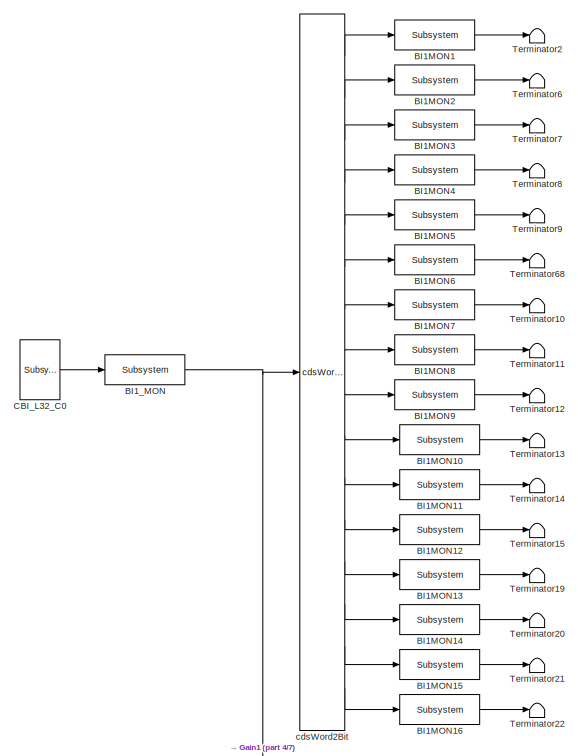
[diagram: root canvas - part 1/7, top left region]
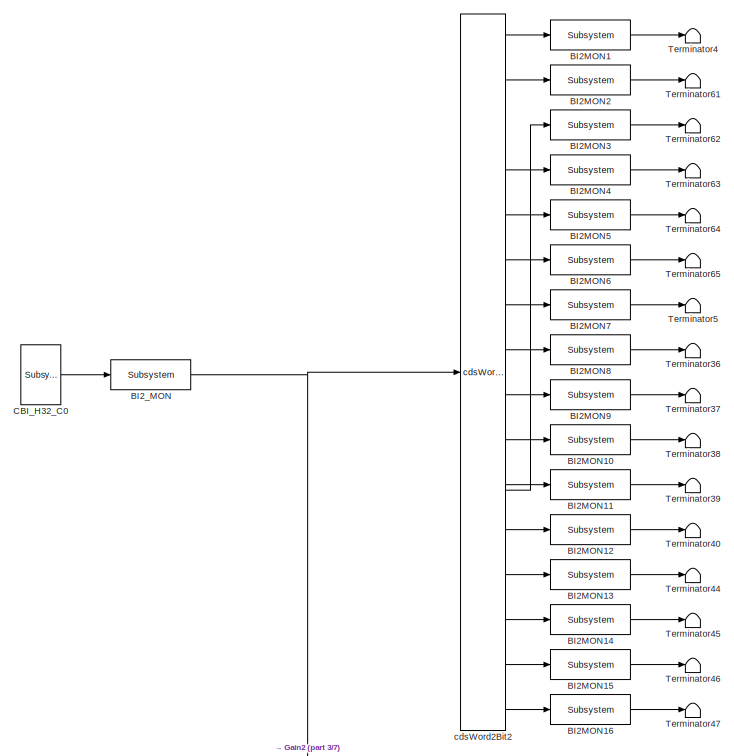
[diagram: root canvas - part 2/7, top right region]
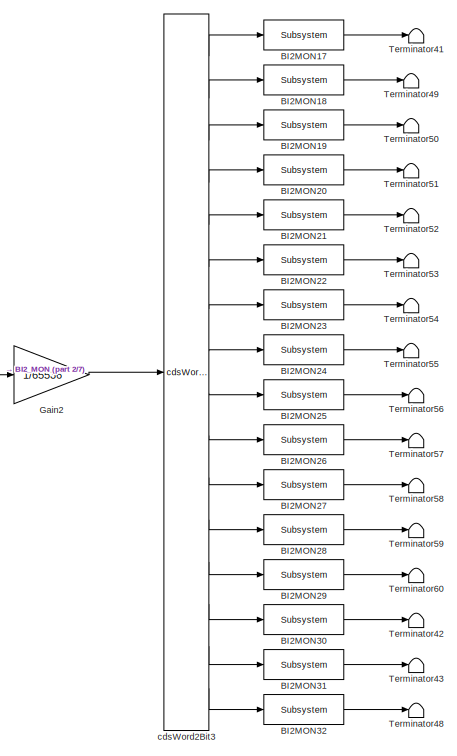
[diagram: root canvas - part 3/7, top right region]
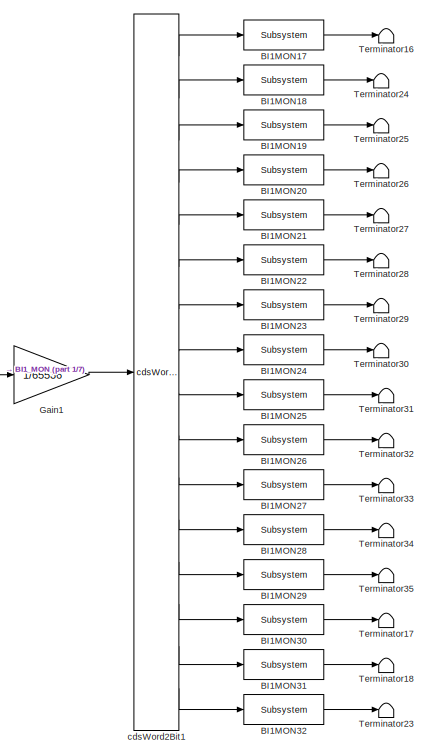
[diagram: root canvas - part 4/7, central region]
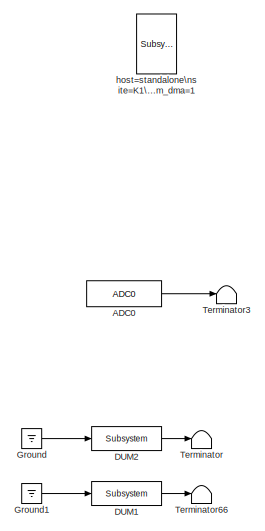
[diagram: root canvas - part 5/7, middle left region]
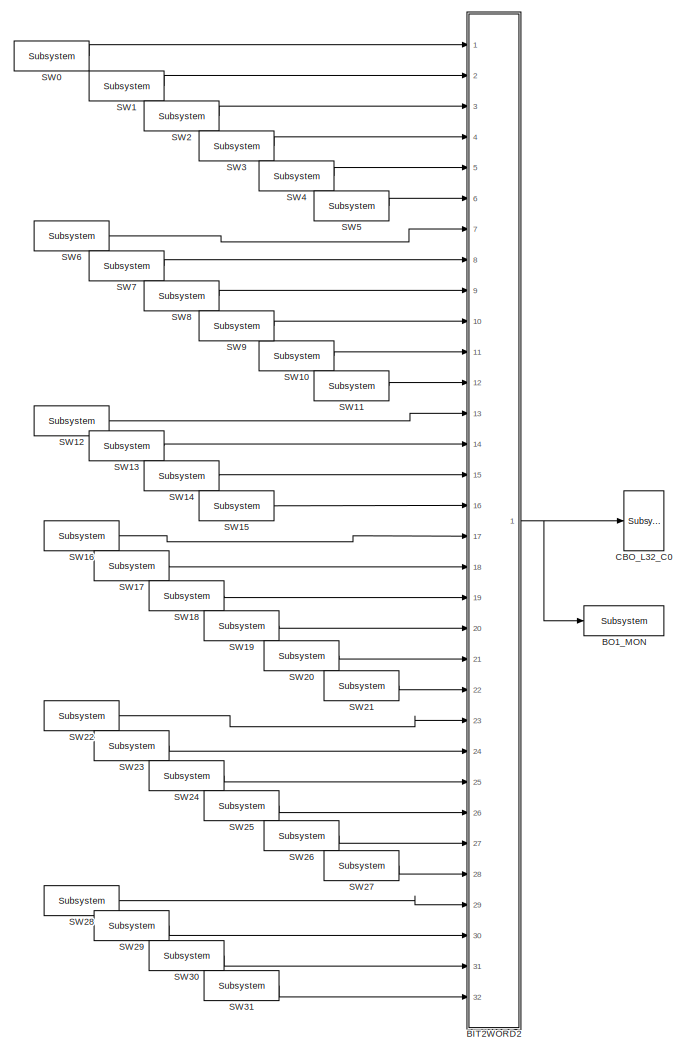
[diagram: root canvas - part 6/7, bottom center region]
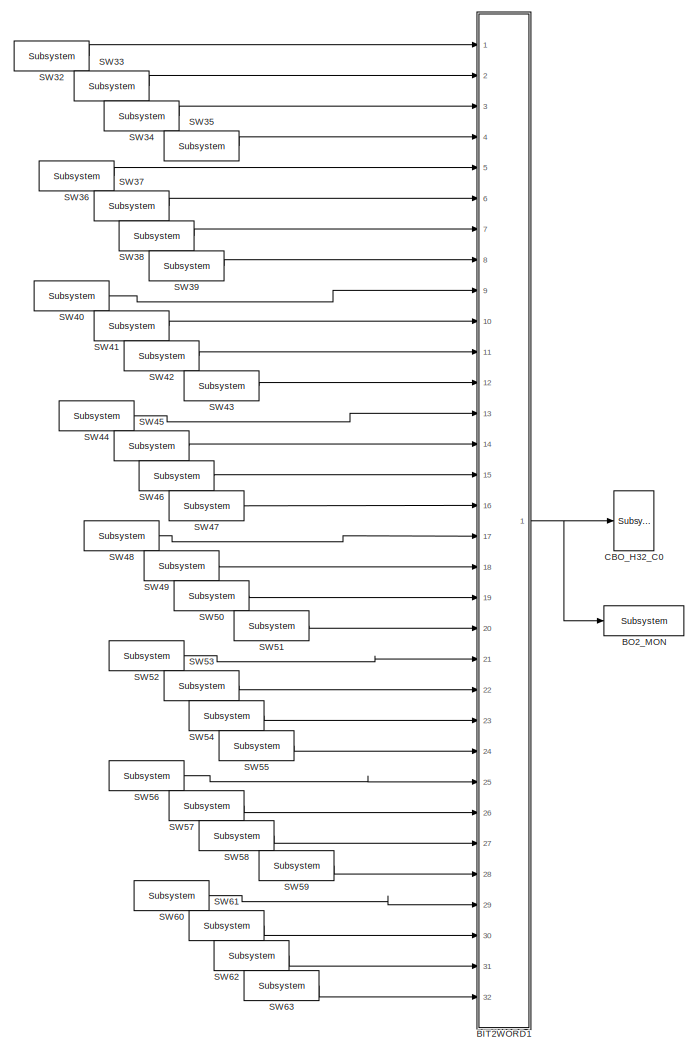
[diagram: root canvas - part 7/7, bottom center region]
MODEL k1bio
KIND model
BLOCK [Reference] ADC0  REF=cdsAdcx0/ADC0
  AttributesFormatString = %<Description>\\n%<Tag>
  Description = type-GSC_16AI64SSA\ncard_num=0
  Ports = [0, 1]
  SID = 11
  SourceBlock = cdsAdcx0/ADC0
  SourceType = SubSystem
  Tag = cdsAdc
BLOCK [Reference] BI1MON1  REF=cdsEpicsOut/Subsystem
  AttributesFormatString = %<Tag>
  Description = Purpose:                                          \nOutput a FE signal to an EPICS channel.           \n                                                  \nOperation:                                        \nTakes input value and passes it to EPICS record.  \n                                                  \nUsage:                                            \nName the part with the desired EPICS...<+14ch>  <repeated x68 — deduplicated; at blocks: BI1MON1, BI1MON10, BI1MON11, BI1MON12, BI1MON13, BI1MON14, BI1MON15, BI1MON16, BI1MON17, BI1MON18, BI1MON19, BI1MON2, BI1MON20, BI1MON21, BI1MON22, BI1MON23, +52 more>
  Ports = [1, 1]
  SID = 603
  SourceBlock = cdsEpicsOut/Subsystem
  SourceType = SubSystem
  Tag = cdsEpicsOutput
BLOCK [Reference] BI1MON10  REF=cdsEpicsOut/Subsystem
  AttributesFormatString = %<Tag>
  Ports = [1, 1]
  SID = 604
  SourceBlock = cdsEpicsOut/Subsystem
  SourceType = SubSystem
  Tag = cdsEpicsOutput
BLOCK [Reference] BI1MON11  REF=cdsEpicsOut/Subsystem
  AttributesFormatString = %<Tag>
  Ports = [1, 1]
  SID = 605
  SourceBlock = cdsEpicsOut/Subsystem
  SourceType = SubSystem
  Tag = cdsEpicsOutput
BLOCK [Reference] BI1MON12  REF=cdsEpicsOut/Subsystem
  AttributesFormatString = %<Tag>
  Ports = [1, 1]
  SID = 606
  SourceBlock = cdsEpicsOut/Subsystem
  SourceType = SubSystem
  Tag = cdsEpicsOutput
BLOCK [Reference] BI1MON13  REF=cdsEpicsOut/Subsystem
  AttributesFormatString = %<Tag>
  Ports = [1, 1]
  SID = 607
  SourceBlock = cdsEpicsOut/Subsystem
  SourceType = SubSystem
  Tag = cdsEpicsOutput
BLOCK [Reference] BI1MON14  REF=cdsEpicsOut/Subsystem
  AttributesFormatString = %<Tag>
  Ports = [1, 1]
  SID = 608
  SourceBlock = cdsEpicsOut/Subsystem
  SourceType = SubSystem
  Tag = cdsEpicsOutput
BLOCK [Reference] BI1MON15  REF=cdsEpicsOut/Subsystem
  AttributesFormatString = %<Tag>
  Ports = [1, 1]
  SID = 609
  SourceBlock = cdsEpicsOut/Subsystem
  SourceType = SubSystem
  Tag = cdsEpicsOutput
BLOCK [Reference] BI1MON16  REF=cdsEpicsOut/Subsystem
  AttributesFormatString = %<Tag>
  Ports = [1, 1]
  SID = 610
  SourceBlock = cdsEpicsOut/Subsystem
  SourceType = SubSystem
  Tag = cdsEpicsOutput
BLOCK [Reference] BI1MON17  REF=cdsEpicsOut/Subsystem
  AttributesFormatString = %<Tag>
  Ports = [1, 1]
  SID = 611
  SourceBlock = cdsEpicsOut/Subsystem
  SourceType = SubSystem
  Tag = cdsEpicsOutput
BLOCK [Reference] BI1MON18  REF=cdsEpicsOut/Subsystem
  AttributesFormatString = %<Tag>
  Ports = [1, 1]
  SID = 612
  SourceBlock = cdsEpicsOut/Subsystem
  SourceType = SubSystem
  Tag = cdsEpicsOutput
BLOCK [Reference] BI1MON19  REF=cdsEpicsOut/Subsystem
  AttributesFormatString = %<Tag>
  Ports = [1, 1]
  SID = 613
  SourceBlock = cdsEpicsOut/Subsystem
  SourceType = SubSystem
  Tag = cdsEpicsOutput
BLOCK [Reference] BI1MON2  REF=cdsEpicsOut/Subsystem
  AttributesFormatString = %<Tag>
  Ports = [1, 1]
  SID = 614
  SourceBlock = cdsEpicsOut/Subsystem
  SourceType = SubSystem
  Tag = cdsEpicsOutput
BLOCK [Reference] BI1MON20  REF=cdsEpicsOut/Subsystem
  AttributesFormatString = %<Tag>
  Ports = [1, 1]
  SID = 615
  SourceBlock = cdsEpicsOut/Subsystem
  SourceType = SubSystem
  Tag = cdsEpicsOutput
BLOCK [Reference] BI1MON21  REF=cdsEpicsOut/Subsystem
  AttributesFormatString = %<Tag>
  Ports = [1, 1]
  SID = 616
  SourceBlock = cdsEpicsOut/Subsystem
  SourceType = SubSystem
  Tag = cdsEpicsOutput
BLOCK [Reference] BI1MON22  REF=cdsEpicsOut/Subsystem
  AttributesFormatString = %<Tag>
  Ports = [1, 1]
  SID = 617
  SourceBlock = cdsEpicsOut/Subsystem
  SourceType = SubSystem
  Tag = cdsEpicsOutput
BLOCK [Reference] BI1MON23  REF=cdsEpicsOut/Subsystem
  AttributesFormatString = %<Tag>
  Ports = [1, 1]
  SID = 618
  SourceBlock = cdsEpicsOut/Subsystem
  SourceType = SubSystem
  Tag = cdsEpicsOutput
BLOCK [Reference] BI1MON24  REF=cdsEpicsOut/Subsystem
  AttributesFormatString = %<Tag>
  Ports = [1, 1]
  SID = 619
  SourceBlock = cdsEpicsOut/Subsystem
  SourceType = SubSystem
  Tag = cdsEpicsOutput
BLOCK [Reference] BI1MON25  REF=cdsEpicsOut/Subsystem
  AttributesFormatString = %<Tag>
  Ports = [1, 1]
  SID = 620
  SourceBlock = cdsEpicsOut/Subsystem
  SourceType = SubSystem
  Tag = cdsEpicsOutput
BLOCK [Reference] BI1MON26  REF=cdsEpicsOut/Subsystem
  AttributesFormatString = %<Tag>
  Ports = [1, 1]
  SID = 621
  SourceBlock = cdsEpicsOut/Subsystem
  SourceType = SubSystem
  Tag = cdsEpicsOutput
BLOCK [Reference] BI1MON27  REF=cdsEpicsOut/Subsystem
  AttributesFormatString = %<Tag>
  Ports = [1, 1]
  SID = 622
  SourceBlock = cdsEpicsOut/Subsystem
  SourceType = SubSystem
  Tag = cdsEpicsOutput
BLOCK [Reference] BI1MON28  REF=cdsEpicsOut/Subsystem
  AttributesFormatString = %<Tag>
  Ports = [1, 1]
  SID = 623
  SourceBlock = cdsEpicsOut/Subsystem
  SourceType = SubSystem
  Tag = cdsEpicsOutput
BLOCK [Reference] BI1MON29  REF=cdsEpicsOut/Subsystem
  AttributesFormatString = %<Tag>
  Ports = [1, 1]
  SID = 624
  SourceBlock = cdsEpicsOut/Subsystem
  SourceType = SubSystem
  Tag = cdsEpicsOutput
BLOCK [Reference] BI1MON3  REF=cdsEpicsOut/Subsystem
  AttributesFormatString = %<Tag>
  Ports = [1, 1]
  SID = 625
  SourceBlock = cdsEpicsOut/Subsystem
  SourceType = SubSystem
  Tag = cdsEpicsOutput
BLOCK [Reference] BI1MON30  REF=cdsEpicsOut/Subsystem
  AttributesFormatString = %<Tag>
  Ports = [1, 1]
  SID = 626
  SourceBlock = cdsEpicsOut/Subsystem
  SourceType = SubSystem
  Tag = cdsEpicsOutput
BLOCK [Reference] BI1MON31  REF=cdsEpicsOut/Subsystem
  AttributesFormatString = %<Tag>
  Ports = [1, 1]
  SID = 627
  SourceBlock = cdsEpicsOut/Subsystem
  SourceType = SubSystem
  Tag = cdsEpicsOutput
BLOCK [Reference] BI1MON32  REF=cdsEpicsOut/Subsystem
  AttributesFormatString = %<Tag>
  Ports = [1, 1]
  SID = 628
  SourceBlock = cdsEpicsOut/Subsystem
  SourceType = SubSystem
  Tag = cdsEpicsOutput
BLOCK [Reference] BI1MON4  REF=cdsEpicsOut/Subsystem
  AttributesFormatString = %<Tag>
  Ports = [1, 1]
  SID = 629
  SourceBlock = cdsEpicsOut/Subsystem
  SourceType = SubSystem
  Tag = cdsEpicsOutput
BLOCK [Reference] BI1MON5  REF=cdsEpicsOut/Subsystem
  AttributesFormatString = %<Tag>
  Ports = [1, 1]
  SID = 630
  SourceBlock = cdsEpicsOut/Subsystem
  SourceType = SubSystem
  Tag = cdsEpicsOutput
BLOCK [Reference] BI1MON6  REF=cdsEpicsOut/Subsystem
  AttributesFormatString = %<Tag>
  Ports = [1, 1]
  SID = 631
  SourceBlock = cdsEpicsOut/Subsystem
  SourceType = SubSystem
  Tag = cdsEpicsOutput
BLOCK [Reference] BI1MON7  REF=cdsEpicsOut/Subsystem
  AttributesFormatString = %<Tag>
  Ports = [1, 1]
  SID = 632
  SourceBlock = cdsEpicsOut/Subsystem
  SourceType = SubSystem
  Tag = cdsEpicsOutput
BLOCK [Reference] BI1MON8  REF=cdsEpicsOut/Subsystem
  AttributesFormatString = %<Tag>
  Ports = [1, 1]
  SID = 633
  SourceBlock = cdsEpicsOut/Subsystem
  SourceType = SubSystem
  Tag = cdsEpicsOutput
BLOCK [Reference] BI1MON9  REF=cdsEpicsOut/Subsystem
  AttributesFormatString = %<Tag>
  Ports = [1, 1]
  SID = 634
  SourceBlock = cdsEpicsOut/Subsystem
  SourceType = SubSystem
  Tag = cdsEpicsOutput
BLOCK [Reference] BI1_MON  REF=cdsEpicsOut/Subsystem
  AttributesFormatString = %<Tag>
  Ports = [1, 1]
  SID = 499
  SourceBlock = cdsEpicsOut/Subsystem
  SourceType = SubSystem
  Tag = cdsEpicsOutput
BLOCK [Reference] BI2MON1  REF=cdsEpicsOut/Subsystem
  AttributesFormatString = %<Tag>
  Ports = [1, 1]
  SID = 635
  SourceBlock = cdsEpicsOut/Subsystem
  SourceType = SubSystem
  Tag = cdsEpicsOutput
BLOCK [Reference] BI2MON10  REF=cdsEpicsOut/Subsystem
  AttributesFormatString = %<Tag>
  Ports = [1, 1]
  SID = 636
  SourceBlock = cdsEpicsOut/Subsystem
  SourceType = SubSystem
  Tag = cdsEpicsOutput
BLOCK [Reference] BI2MON11  REF=cdsEpicsOut/Subsystem
  AttributesFormatString = %<Tag>
  Ports = [1, 1]
  SID = 637
  SourceBlock = cdsEpicsOut/Subsystem
  SourceType = SubSystem
  Tag = cdsEpicsOutput
BLOCK [Reference] BI2MON12  REF=cdsEpicsOut/Subsystem
  AttributesFormatString = %<Tag>
  Ports = [1, 1]
  SID = 638
  SourceBlock = cdsEpicsOut/Subsystem
  SourceType = SubSystem
  Tag = cdsEpicsOutput
BLOCK [Reference] BI2MON13  REF=cdsEpicsOut/Subsystem
  AttributesFormatString = %<Tag>
  Ports = [1, 1]
  SID = 639
  SourceBlock = cdsEpicsOut/Subsystem
  SourceType = SubSystem
  Tag = cdsEpicsOutput
BLOCK [Reference] BI2MON14  REF=cdsEpicsOut/Subsystem
  AttributesFormatString = %<Tag>
  Ports = [1, 1]
  SID = 640
  SourceBlock = cdsEpicsOut/Subsystem
  SourceType = SubSystem
  Tag = cdsEpicsOutput
BLOCK [Reference] BI2MON15  REF=cdsEpicsOut/Subsystem
  AttributesFormatString = %<Tag>
  Ports = [1, 1]
  SID = 641
  SourceBlock = cdsEpicsOut/Subsystem
  SourceType = SubSystem
  Tag = cdsEpicsOutput
BLOCK [Reference] BI2MON16  REF=cdsEpicsOut/Subsystem
  AttributesFormatString = %<Tag>
  Ports = [1, 1]
  SID = 642
  SourceBlock = cdsEpicsOut/Subsystem
  SourceType = SubSystem
  Tag = cdsEpicsOutput
BLOCK [Reference] BI2MON17  REF=cdsEpicsOut/Subsystem
  AttributesFormatString = %<Tag>
  Ports = [1, 1]
  SID = 643
  SourceBlock = cdsEpicsOut/Subsystem
  SourceType = SubSystem
  Tag = cdsEpicsOutput
BLOCK [Reference] BI2MON18  REF=cdsEpicsOut/Subsystem
  AttributesFormatString = %<Tag>
  Ports = [1, 1]
  SID = 644
  SourceBlock = cdsEpicsOut/Subsystem
  SourceType = SubSystem
  Tag = cdsEpicsOutput
BLOCK [Reference] BI2MON19  REF=cdsEpicsOut/Subsystem
  AttributesFormatString = %<Tag>
  Ports = [1, 1]
  SID = 645
  SourceBlock = cdsEpicsOut/Subsystem
  SourceType = SubSystem
  Tag = cdsEpicsOutput
BLOCK [Reference] BI2MON2  REF=cdsEpicsOut/Subsystem
  AttributesFormatString = %<Tag>
  Ports = [1, 1]
  SID = 646
  SourceBlock = cdsEpicsOut/Subsystem
  SourceType = SubSystem
  Tag = cdsEpicsOutput
BLOCK [Reference] BI2MON20  REF=cdsEpicsOut/Subsystem
  AttributesFormatString = %<Tag>
  Ports = [1, 1]
  SID = 647
  SourceBlock = cdsEpicsOut/Subsystem
  SourceType = SubSystem
  Tag = cdsEpicsOutput
BLOCK [Reference] BI2MON21  REF=cdsEpicsOut/Subsystem
  AttributesFormatString = %<Tag>
  Ports = [1, 1]
  SID = 648
  SourceBlock = cdsEpicsOut/Subsystem
  SourceType = SubSystem
  Tag = cdsEpicsOutput
BLOCK [Reference] BI2MON22  REF=cdsEpicsOut/Subsystem
  AttributesFormatString = %<Tag>
  Ports = [1, 1]
  SID = 649
  SourceBlock = cdsEpicsOut/Subsystem
  SourceType = SubSystem
  Tag = cdsEpicsOutput
BLOCK [Reference] BI2MON23  REF=cdsEpicsOut/Subsystem
  AttributesFormatString = %<Tag>
  Ports = [1, 1]
  SID = 650
  SourceBlock = cdsEpicsOut/Subsystem
  SourceType = SubSystem
  Tag = cdsEpicsOutput
BLOCK [Reference] BI2MON24  REF=cdsEpicsOut/Subsystem
  AttributesFormatString = %<Tag>
  Ports = [1, 1]
  SID = 651
  SourceBlock = cdsEpicsOut/Subsystem
  SourceType = SubSystem
  Tag = cdsEpicsOutput
BLOCK [Reference] BI2MON25  REF=cdsEpicsOut/Subsystem
  AttributesFormatString = %<Tag>
  Ports = [1, 1]
  SID = 652
  SourceBlock = cdsEpicsOut/Subsystem
  SourceType = SubSystem
  Tag = cdsEpicsOutput
BLOCK [Reference] BI2MON26  REF=cdsEpicsOut/Subsystem
  AttributesFormatString = %<Tag>
  Ports = [1, 1]
  SID = 653
  SourceBlock = cdsEpicsOut/Subsystem
  SourceType = SubSystem
  Tag = cdsEpicsOutput
BLOCK [Reference] BI2MON27  REF=cdsEpicsOut/Subsystem
  AttributesFormatString = %<Tag>
  Ports = [1, 1]
  SID = 654
  SourceBlock = cdsEpicsOut/Subsystem
  SourceType = SubSystem
  Tag = cdsEpicsOutput
BLOCK [Reference] BI2MON28  REF=cdsEpicsOut/Subsystem
  AttributesFormatString = %<Tag>
  Ports = [1, 1]
  SID = 655
  SourceBlock = cdsEpicsOut/Subsystem
  SourceType = SubSystem
  Tag = cdsEpicsOutput
BLOCK [Reference] BI2MON29  REF=cdsEpicsOut/Subsystem
  AttributesFormatString = %<Tag>
  Ports = [1, 1]
  SID = 656
  SourceBlock = cdsEpicsOut/Subsystem
  SourceType = SubSystem
  Tag = cdsEpicsOutput
BLOCK [Reference] BI2MON3  REF=cdsEpicsOut/Subsystem
  AttributesFormatString = %<Tag>
  Ports = [1, 1]
  SID = 657
  SourceBlock = cdsEpicsOut/Subsystem
  SourceType = SubSystem
  Tag = cdsEpicsOutput
BLOCK [Reference] BI2MON30  REF=cdsEpicsOut/Subsystem
  AttributesFormatString = %<Tag>
  Ports = [1, 1]
  SID = 658
  SourceBlock = cdsEpicsOut/Subsystem
  SourceType = SubSystem
  Tag = cdsEpicsOutput
BLOCK [Reference] BI2MON31  REF=cdsEpicsOut/Subsystem
  AttributesFormatString = %<Tag>
  Ports = [1, 1]
  SID = 659
  SourceBlock = cdsEpicsOut/Subsystem
  SourceType = SubSystem
  Tag = cdsEpicsOutput
BLOCK [Reference] BI2MON32  REF=cdsEpicsOut/Subsystem
  AttributesFormatString = %<Tag>
  Ports = [1, 1]
  SID = 660
  SourceBlock = cdsEpicsOut/Subsystem
  SourceType = SubSystem
  Tag = cdsEpicsOutput
BLOCK [Reference] BI2MON4  REF=cdsEpicsOut/Subsystem
  AttributesFormatString = %<Tag>
  Ports = [1, 1]
  SID = 661
  SourceBlock = cdsEpicsOut/Subsystem
  SourceType = SubSystem
  Tag = cdsEpicsOutput
BLOCK [Reference] BI2MON5  REF=cdsEpicsOut/Subsystem
  AttributesFormatString = %<Tag>
  Ports = [1, 1]
  SID = 662
  SourceBlock = cdsEpicsOut/Subsystem
  SourceType = SubSystem
  Tag = cdsEpicsOutput
BLOCK [Reference] BI2MON6  REF=cdsEpicsOut/Subsystem
  AttributesFormatString = %<Tag>
  Ports = [1, 1]
  SID = 663
  SourceBlock = cdsEpicsOut/Subsystem
  SourceType = SubSystem
  Tag = cdsEpicsOutput
BLOCK [Reference] BI2MON7  REF=cdsEpicsOut/Subsystem
  AttributesFormatString = %<Tag>
  Ports = [1, 1]
  SID = 664
  SourceBlock = cdsEpicsOut/Subsystem
  SourceType = SubSystem
  Tag = cdsEpicsOutput
BLOCK [Reference] BI2MON8  REF=cdsEpicsOut/Subsystem
  AttributesFormatString = %<Tag>
  Ports = [1, 1]
  SID = 665
  SourceBlock = cdsEpicsOut/Subsystem
  SourceType = SubSystem
  Tag = cdsEpicsOutput
BLOCK [Reference] BI2MON9  REF=cdsEpicsOut/Subsystem
  AttributesFormatString = %<Tag>
  Ports = [1, 1]
  SID = 666
  SourceBlock = cdsEpicsOut/Subsystem
  SourceType = SubSystem
  Tag = cdsEpicsOutput
BLOCK [Reference] BI2_MON  REF=cdsEpicsOut/Subsystem
  AttributesFormatString = %<Tag>
  Ports = [1, 1]
  SID = 8
  SourceBlock = cdsEpicsOut/Subsystem
  SourceType = SubSystem
  Tag = cdsEpicsOutput
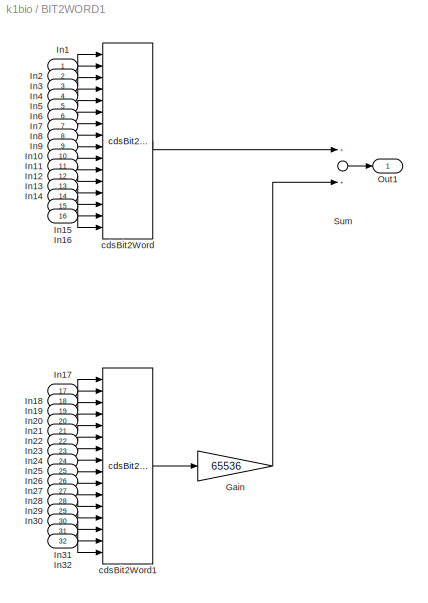
BLOCK [SubSystem] BIT2WORD1
  FunctionWithSeparateData = off
  MaskHideContents = off
  MinAlgLoopOccurrences = off
  Opaque = off
  Ports = [32, 1]
  PropExecContextOutsideSubsystem = off
  RTWSystemCode = Auto
  RequestExecContextInheritance = off
  SID = 356
BLOCK [Gain] BIT2WORD1/Gain
  Gain = 65536
  OutDataTypeStr = Inherit: Inherit via internal rule
  ParamDataTypeStr = Inherit: Inherit via internal rule
  SID = 389
  SaturateOnIntegerOverflow = off
BLOCK [Inport] BIT2WORD1/In1
  IconDisplay = Port number
  SID = 357
BLOCK [Inport] BIT2WORD1/In10
  IconDisplay = Port number
  Port = 10
  SID = 366
BLOCK [Inport] BIT2WORD1/In11
  IconDisplay = Port number
  Port = 11
  SID = 367
BLOCK [Inport] BIT2WORD1/In12
  IconDisplay = Port number
  Port = 12
  SID = 368
BLOCK [Inport] BIT2WORD1/In13
  IconDisplay = Port number
  Port = 13
  SID = 369
BLOCK [Inport] BIT2WORD1/In14
  IconDisplay = Port number
  Port = 14
  SID = 370
BLOCK [Inport] BIT2WORD1/In15
  IconDisplay = Port number
  Port = 15
  SID = 371
BLOCK [Inport] BIT2WORD1/In16
  IconDisplay = Port number
  Port = 16
  SID = 372
BLOCK [Inport] BIT2WORD1/In17
  IconDisplay = Port number
  Port = 17
  SID = 373
BLOCK [Inport] BIT2WORD1/In18
  IconDisplay = Port number
  Port = 18
  SID = 374
BLOCK [Inport] BIT2WORD1/In19
  IconDisplay = Port number
  Port = 19
  SID = 375
BLOCK [Inport] BIT2WORD1/In2
  IconDisplay = Port number
  Port = 2
  SID = 358
BLOCK [Inport] BIT2WORD1/In20
  IconDisplay = Port number
  Port = 20
  SID = 376
BLOCK [Inport] BIT2WORD1/In21
  IconDisplay = Port number
  Port = 21
  SID = 377
BLOCK [Inport] BIT2WORD1/In22
  IconDisplay = Port number
  Port = 22
  SID = 378
BLOCK [Inport] BIT2WORD1/In23
  IconDisplay = Port number
  Port = 23
  SID = 379
BLOCK [Inport] BIT2WORD1/In24
  IconDisplay = Port number
  Port = 24
  SID = 380
BLOCK [Inport] BIT2WORD1/In25
  IconDisplay = Port number
  Port = 25
  SID = 381
BLOCK [Inport] BIT2WORD1/In26
  IconDisplay = Port number
  Port = 26
  SID = 382
BLOCK [Inport] BIT2WORD1/In27
  IconDisplay = Port number
  Port = 27
  SID = 383
BLOCK [Inport] BIT2WORD1/In28
  IconDisplay = Port number
  Port = 28
  SID = 384
BLOCK [Inport] BIT2WORD1/In29
  IconDisplay = Port number
  Port = 29
  SID = 385
BLOCK [Inport] BIT2WORD1/In3
  IconDisplay = Port number
  Port = 3
  SID = 359
BLOCK [Inport] BIT2WORD1/In30
  IconDisplay = Port number
  Port = 30
  SID = 386
BLOCK [Inport] BIT2WORD1/In31
  IconDisplay = Port number
  Port = 31
  SID = 387
BLOCK [Inport] BIT2WORD1/In32
  IconDisplay = Port number
  Port = 32
  SID = 388
BLOCK [Inport] BIT2WORD1/In4
  IconDisplay = Port number
  Port = 4
  SID = 360
BLOCK [Inport] BIT2WORD1/In5
  IconDisplay = Port number
  Port = 5
  SID = 361
BLOCK [Inport] BIT2WORD1/In6
  IconDisplay = Port number
  Port = 6
  SID = 362
BLOCK [Inport] BIT2WORD1/In7
  IconDisplay = Port number
  Port = 7
  SID = 363
BLOCK [Inport] BIT2WORD1/In8
  IconDisplay = Port number
  Port = 8
  SID = 364
BLOCK [Inport] BIT2WORD1/In9
  IconDisplay = Port number
  Port = 9
  SID = 365
BLOCK [Outport] BIT2WORD1/Out1
  IconDisplay = Port number
  SID = 393
BLOCK [Sum] BIT2WORD1/Sum
  InputSameDT = off
  OutDataTypeStr = Inherit: Inherit via internal rule
  Ports = [2, 1]
  SID = 390
  SaturateOnIntegerOverflow = off
BLOCK [Reference] BIT2WORD1/cdsBit2Word  REF=cdsBit2Word/cdsBit2Word
  AttributesFormatString = %<Tag>
  Description = Forms single 16 bit integer from 16 0/1 inputs.
  Ports = [16, 1]
  SID = 391
  SourceBlock = cdsBit2Word/cdsBit2Word
  SourceType = SubSystem
  Tag = cdsBit2Word
BLOCK [Reference] BIT2WORD1/cdsBit2Word1  REF=cdsBit2Word/cdsBit2Word
  AttributesFormatString = %<Tag>
  Description = Forms single 16 bit integer from 16 0/1 inputs.
  Ports = [16, 1]
  SID = 392
  SourceBlock = cdsBit2Word/cdsBit2Word
  SourceType = SubSystem
  Tag = cdsBit2Word
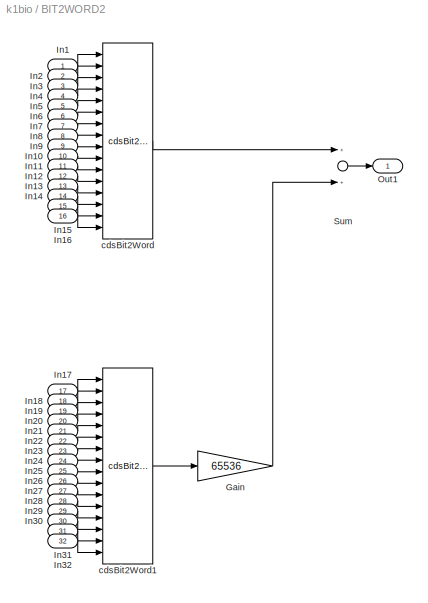
BLOCK [SubSystem] BIT2WORD2
  FunctionWithSeparateData = off
  MaskHideContents = off
  MinAlgLoopOccurrences = off
  Opaque = off
  Ports = [32, 1]
  PropExecContextOutsideSubsystem = off
  RTWSystemCode = Auto
  RequestExecContextInheritance = off
  SID = 318
BLOCK [Gain] BIT2WORD2/Gain
  Gain = 65536
  OutDataTypeStr = Inherit: Inherit via internal rule
  ParamDataTypeStr = Inherit: Inherit via internal rule
  SID = 351
  SaturateOnIntegerOverflow = off
BLOCK [Inport] BIT2WORD2/In1
  IconDisplay = Port number
  SID = 319
BLOCK [Inport] BIT2WORD2/In10
  IconDisplay = Port number
  Port = 10
  SID = 328
BLOCK [Inport] BIT2WORD2/In11
  IconDisplay = Port number
  Port = 11
  SID = 329
BLOCK [Inport] BIT2WORD2/In12
  IconDisplay = Port number
  Port = 12
  SID = 330
BLOCK [Inport] BIT2WORD2/In13
  IconDisplay = Port number
  Port = 13
  SID = 331
BLOCK [Inport] BIT2WORD2/In14
  IconDisplay = Port number
  Port = 14
  SID = 332
BLOCK [Inport] BIT2WORD2/In15
  IconDisplay = Port number
  Port = 15
  SID = 333
BLOCK [Inport] BIT2WORD2/In16
  IconDisplay = Port number
  Port = 16
  SID = 334
BLOCK [Inport] BIT2WORD2/In17
  IconDisplay = Port number
  Port = 17
  SID = 335
BLOCK [Inport] BIT2WORD2/In18
  IconDisplay = Port number
  Port = 18
  SID = 336
BLOCK [Inport] BIT2WORD2/In19
  IconDisplay = Port number
  Port = 19
  SID = 337
BLOCK [Inport] BIT2WORD2/In2
  IconDisplay = Port number
  Port = 2
  SID = 320
BLOCK [Inport] BIT2WORD2/In20
  IconDisplay = Port number
  Port = 20
  SID = 338
BLOCK [Inport] BIT2WORD2/In21
  IconDisplay = Port number
  Port = 21
  SID = 339
BLOCK [Inport] BIT2WORD2/In22
  IconDisplay = Port number
  Port = 22
  SID = 340
BLOCK [Inport] BIT2WORD2/In23
  IconDisplay = Port number
  Port = 23
  SID = 341
BLOCK [Inport] BIT2WORD2/In24
  IconDisplay = Port number
  Port = 24
  SID = 342
BLOCK [Inport] BIT2WORD2/In25
  IconDisplay = Port number
  Port = 25
  SID = 343
BLOCK [Inport] BIT2WORD2/In26
  IconDisplay = Port number
  Port = 26
  SID = 344
BLOCK [Inport] BIT2WORD2/In27
  IconDisplay = Port number
  Port = 27
  SID = 345
BLOCK [Inport] BIT2WORD2/In28
  IconDisplay = Port number
  Port = 28
  SID = 346
BLOCK [Inport] BIT2WORD2/In29
  IconDisplay = Port number
  Port = 29
  SID = 347
BLOCK [Inport] BIT2WORD2/In3
  IconDisplay = Port number
  Port = 3
  SID = 321
BLOCK [Inport] BIT2WORD2/In30
  IconDisplay = Port number
  Port = 30
  SID = 348
BLOCK [Inport] BIT2WORD2/In31
  IconDisplay = Port number
  Port = 31
  SID = 349
BLOCK [Inport] BIT2WORD2/In32
  IconDisplay = Port number
  Port = 32
  SID = 350
BLOCK [Inport] BIT2WORD2/In4
  IconDisplay = Port number
  Port = 4
  SID = 322
BLOCK [Inport] BIT2WORD2/In5
  IconDisplay = Port number
  Port = 5
  SID = 323
BLOCK [Inport] BIT2WORD2/In6
  IconDisplay = Port number
  Port = 6
  SID = 324
BLOCK [Inport] BIT2WORD2/In7
  IconDisplay = Port number
  Port = 7
  SID = 325
BLOCK [Inport] BIT2WORD2/In8
  IconDisplay = Port number
  Port = 8
  SID = 326
BLOCK [Inport] BIT2WORD2/In9
  IconDisplay = Port number
  Port = 9
  SID = 327
BLOCK [Outport] BIT2WORD2/Out1
  IconDisplay = Port number
  SID = 355
BLOCK [Sum] BIT2WORD2/Sum
  InputSameDT = off
  OutDataTypeStr = Inherit: Inherit via internal rule
  Ports = [2, 1]
  SID = 352
  SaturateOnIntegerOverflow = off
BLOCK [Reference] BIT2WORD2/cdsBit2Word  REF=cdsBit2Word/cdsBit2Word
  AttributesFormatString = %<Tag>
  Description = Forms single 16 bit integer from 16 0/1 inputs.
  Ports = [16, 1]
  SID = 353
  SourceBlock = cdsBit2Word/cdsBit2Word
  SourceType = SubSystem
  Tag = cdsBit2Word
BLOCK [Reference] BIT2WORD2/cdsBit2Word1  REF=cdsBit2Word/cdsBit2Word
  AttributesFormatString = %<Tag>
  Description = Forms single 16 bit integer from 16 0/1 inputs.
  Ports = [16, 1]
  SID = 354
  SourceBlock = cdsBit2Word/cdsBit2Word
  SourceType = SubSystem
  Tag = cdsBit2Word
BLOCK [Reference] BO1_MON  REF=cdsEpicsOut/Subsystem
  AttributesFormatString = %<Tag>
  Ports = [1, 1]
  SID = 18
  SourceBlock = cdsEpicsOut/Subsystem
  SourceType = SubSystem
  Tag = cdsEpicsOutput
BLOCK [Reference] BO2_MON  REF=cdsEpicsOut/Subsystem
  AttributesFormatString = %<Tag>
  Ports = [1, 1]
  SID = 19
  SourceBlock = cdsEpicsOut/Subsystem
  SourceType = SubSystem
  Tag = cdsEpicsOutput
BLOCK [Reference] CBI_H32_C0  REF=cdsCDI64/Subsystem
  AttributesFormatString = %<Tag>\\n%<Description>
  Description = card_num=1
  Ports = [0, 1]
  SID = 1
  SourceBlock = cdsCDI64/Subsystem
  SourceType = SubSystem
  Tag = cdsCDI64
BLOCK [Reference] CBI_L32_C0  REF=cdsCDI64/Subsystem
  AttributesFormatString = %<Tag>\\n%<Description>
  Description = card_num=0
  Ports = [0, 1]
  SID = 2
  SourceBlock = cdsCDI64/Subsystem
  SourceType = SubSystem
  Tag = cdsCDI64
BLOCK [Reference] CBO_H32_C0  REF=cdsCDO64/Subsystem
  AttributesFormatString = %<Tag>\\n%<Description>
  Description = card_num=1
  Ports = [1]
  SID = 3
  SourceBlock = cdsCDO64/Subsystem
  SourceType = SubSystem
  Tag = cdsCDO64
BLOCK [Reference] CBO_L32_C0  REF=cdsCDO64/Subsystem
  AttributesFormatString = %<Tag>\\n%<Description>
  Description = card_num=0
  Ports = [1]
  SID = 4
  SourceBlock = cdsCDO64/Subsystem
  SourceType = SubSystem
  Tag = cdsCDO64
BLOCK [Reference] DUM1  REF=cdsFilt/Subsystem
  AttributesFormatString = %<Tag>
  Description = Purpose:                                                                                                                                                                                                                                  \nStandard CDS IIR filter module.                                                                                                                                     ...<+1302ch>
  Ports = [1, 1]
  SID = 598
  SourceBlock = cdsFilt/Subsystem
  SourceType = SubSystem
  Tag = cdsFilt
BLOCK [Reference] DUM2  REF=cdsFilt/Subsystem
  AttributesFormatString = %<Tag>
  Description = Purpose:                                                                                                                                                                                                                                  \nStandard CDS IIR filter module.                                                                                                                                     ...<+1302ch>
  Ports = [1, 1]
  SID = 10
  SourceBlock = cdsFilt/Subsystem
  SourceType = SubSystem
  Tag = cdsFilt
BLOCK [Gain] Gain1
  Gain = 1/65536
  OutDataTypeStr = Inherit: Inherit via internal rule
  ParamDataTypeStr = Inherit: Inherit via internal rule
  SID = 667
  SaturateOnIntegerOverflow = off
BLOCK [Gain] Gain2
  Gain = 1/65536
  OutDataTypeStr = Inherit: Inherit via internal rule
  ParamDataTypeStr = Inherit: Inherit via internal rule
  SID = 668
  SaturateOnIntegerOverflow = off
BLOCK [Ground] Ground
  SID = 277
BLOCK [Ground] Ground1
  SID = 599
BLOCK [Reference] SW0  REF=cdsEpicsBinIn/Subsystem
  AttributesFormatString = %<Tag>
  Description = Purpose:                                                                            \nCreate an EPICS binary (0 or 1) input channel to the FE realtime controls.          \n                                                                                    \nOperation:                                                                          \nOutputs value from an EPICS ai record. Value is binary i...<+252ch>  <repeated x64 — deduplicated; at blocks: SW0, SW1, SW10, SW11, SW12, SW13, SW14, SW15, SW16, SW17, SW18, SW19, SW2, SW20, SW21, SW22, +48 more>
  Ports = [1, 1]
  SID = 51
  SourceBlock = cdsEpicsBinIn/Subsystem
  SourceType = SubSystem
  Tag = cdsEpicsBinIn
BLOCK [Reference] SW1  REF=cdsEpicsBinIn/Subsystem
  AttributesFormatString = %<Tag>
  Ports = [1, 1]
  SID = 20
  SourceBlock = cdsEpicsBinIn/Subsystem
  SourceType = SubSystem
  Tag = cdsEpicsBinIn
BLOCK [Reference] SW10  REF=cdsEpicsBinIn/Subsystem
  AttributesFormatString = %<Tag>
  Ports = [1, 1]
  SID = 21
  SourceBlock = cdsEpicsBinIn/Subsystem
  SourceType = SubSystem
  Tag = cdsEpicsBinIn
BLOCK [Reference] SW11  REF=cdsEpicsBinIn/Subsystem
  AttributesFormatString = %<Tag>
  Ports = [1, 1]
  SID = 22
  SourceBlock = cdsEpicsBinIn/Subsystem
  SourceType = SubSystem
  Tag = cdsEpicsBinIn
BLOCK [Reference] SW12  REF=cdsEpicsBinIn/Subsystem
  AttributesFormatString = %<Tag>
  Ports = [1, 1]
  SID = 52
  SourceBlock = cdsEpicsBinIn/Subsystem
  SourceType = SubSystem
  Tag = cdsEpicsBinIn
BLOCK [Reference] SW13  REF=cdsEpicsBinIn/Subsystem
  AttributesFormatString = %<Tag>
  Ports = [1, 1]
  SID = 23
  SourceBlock = cdsEpicsBinIn/Subsystem
  SourceType = SubSystem
  Tag = cdsEpicsBinIn
BLOCK [Reference] SW14  REF=cdsEpicsBinIn/Subsystem
  AttributesFormatString = %<Tag>
  Ports = [1, 1]
  SID = 24
  SourceBlock = cdsEpicsBinIn/Subsystem
  SourceType = SubSystem
  Tag = cdsEpicsBinIn
BLOCK [Reference] SW15  REF=cdsEpicsBinIn/Subsystem
  AttributesFormatString = %<Tag>
  Ports = [1, 1]
  SID = 25
  SourceBlock = cdsEpicsBinIn/Subsystem
  SourceType = SubSystem
  Tag = cdsEpicsBinIn
BLOCK [Reference] SW16  REF=cdsEpicsBinIn/Subsystem
  AttributesFormatString = %<Tag>
  Ports = [1, 1]
  SID = 26
  SourceBlock = cdsEpicsBinIn/Subsystem
  SourceType = SubSystem
  Tag = cdsEpicsBinIn
BLOCK [Reference] SW17  REF=cdsEpicsBinIn/Subsystem
  AttributesFormatString = %<Tag>
  Ports = [1, 1]
  SID = 27
  SourceBlock = cdsEpicsBinIn/Subsystem
  SourceType = SubSystem
  Tag = cdsEpicsBinIn
BLOCK [Reference] SW18  REF=cdsEpicsBinIn/Subsystem
  AttributesFormatString = %<Tag>
  Ports = [1, 1]
  SID = 28
  SourceBlock = cdsEpicsBinIn/Subsystem
  SourceType = SubSystem
  Tag = cdsEpicsBinIn
BLOCK [Reference] SW19  REF=cdsEpicsBinIn/Subsystem
  AttributesFormatString = %<Tag>
  Ports = [1, 1]
  SID = 29
  SourceBlock = cdsEpicsBinIn/Subsystem
  SourceType = SubSystem
  Tag = cdsEpicsBinIn
BLOCK [Reference] SW2  REF=cdsEpicsBinIn/Subsystem
  AttributesFormatString = %<Tag>
  Ports = [1, 1]
  SID = 30
  SourceBlock = cdsEpicsBinIn/Subsystem
  SourceType = SubSystem
  Tag = cdsEpicsBinIn
BLOCK [Reference] SW20  REF=cdsEpicsBinIn/Subsystem
  AttributesFormatString = %<Tag>
  Ports = [1, 1]
  SID = 31
  SourceBlock = cdsEpicsBinIn/Subsystem
  SourceType = SubSystem
  Tag = cdsEpicsBinIn
BLOCK [Reference] SW21  REF=cdsEpicsBinIn/Subsystem
  AttributesFormatString = %<Tag>
  Ports = [1, 1]
  SID = 32
  SourceBlock = cdsEpicsBinIn/Subsystem
  SourceType = SubSystem
  Tag = cdsEpicsBinIn
BLOCK [Reference] SW22  REF=cdsEpicsBinIn/Subsystem
  AttributesFormatString = %<Tag>
  Ports = [1, 1]
  SID = 33
  SourceBlock = cdsEpicsBinIn/Subsystem
  SourceType = SubSystem
  Tag = cdsEpicsBinIn
BLOCK [Reference] SW23  REF=cdsEpicsBinIn/Subsystem
  AttributesFormatString = %<Tag>
  Ports = [1, 1]
  SID = 34
  SourceBlock = cdsEpicsBinIn/Subsystem
  SourceType = SubSystem
  Tag = cdsEpicsBinIn
BLOCK [Reference] SW24  REF=cdsEpicsBinIn/Subsystem
  AttributesFormatString = %<Tag>
  Ports = [1, 1]
  SID = 35
  SourceBlock = cdsEpicsBinIn/Subsystem
  SourceType = SubSystem
  Tag = cdsEpicsBinIn
BLOCK [Reference] SW25  REF=cdsEpicsBinIn/Subsystem
  AttributesFormatString = %<Tag>
  Ports = [1, 1]
  SID = 36
  SourceBlock = cdsEpicsBinIn/Subsystem
  SourceType = SubSystem
  Tag = cdsEpicsBinIn
BLOCK [Reference] SW26  REF=cdsEpicsBinIn/Subsystem
  AttributesFormatString = %<Tag>
  Ports = [1, 1]
  SID = 37
  SourceBlock = cdsEpicsBinIn/Subsystem
  SourceType = SubSystem
  Tag = cdsEpicsBinIn
BLOCK [Reference] SW27  REF=cdsEpicsBinIn/Subsystem
  AttributesFormatString = %<Tag>
  Ports = [1, 1]
  SID = 38
  SourceBlock = cdsEpicsBinIn/Subsystem
  SourceType = SubSystem
  Tag = cdsEpicsBinIn
BLOCK [Reference] SW28  REF=cdsEpicsBinIn/Subsystem
  AttributesFormatString = %<Tag>
  Ports = [1, 1]
  SID = 39
  SourceBlock = cdsEpicsBinIn/Subsystem
  SourceType = SubSystem
  Tag = cdsEpicsBinIn
BLOCK [Reference] SW29  REF=cdsEpicsBinIn/Subsystem
  AttributesFormatString = %<Tag>
  Ports = [1, 1]
  SID = 40
  SourceBlock = cdsEpicsBinIn/Subsystem
  SourceType = SubSystem
  Tag = cdsEpicsBinIn
BLOCK [Reference] SW3  REF=cdsEpicsBinIn/Subsystem
  AttributesFormatString = %<Tag>
  Ports = [1, 1]
  SID = 41
  SourceBlock = cdsEpicsBinIn/Subsystem
  SourceType = SubSystem
  Tag = cdsEpicsBinIn
BLOCK [Reference] SW30  REF=cdsEpicsBinIn/Subsystem
  AttributesFormatString = %<Tag>
  Ports = [1, 1]
  SID = 42
  SourceBlock = cdsEpicsBinIn/Subsystem
  SourceType = SubSystem
  Tag = cdsEpicsBinIn
BLOCK [Reference] SW31  REF=cdsEpicsBinIn/Subsystem
  AttributesFormatString = %<Tag>
  Ports = [1, 1]
  SID = 43
  SourceBlock = cdsEpicsBinIn/Subsystem
  SourceType = SubSystem
  Tag = cdsEpicsBinIn
BLOCK [Reference] SW32  REF=cdsEpicsBinIn/Subsystem
  AttributesFormatString = %<Tag>
  Ports = [1, 1]
  SID = 394
  SourceBlock = cdsEpicsBinIn/Subsystem
  SourceType = SubSystem
  Tag = cdsEpicsBinIn
BLOCK [Reference] SW33  REF=cdsEpicsBinIn/Subsystem
  AttributesFormatString = %<Tag>
  Ports = [1, 1]
  SID = 395
  SourceBlock = cdsEpicsBinIn/Subsystem
  SourceType = SubSystem
  Tag = cdsEpicsBinIn
BLOCK [Reference] SW34  REF=cdsEpicsBinIn/Subsystem
  AttributesFormatString = %<Tag>
  Ports = [1, 1]
  SID = 432
  SourceBlock = cdsEpicsBinIn/Subsystem
  SourceType = SubSystem
  Tag = cdsEpicsBinIn
BLOCK [Reference] SW35  REF=cdsEpicsBinIn/Subsystem
  AttributesFormatString = %<Tag>
  Ports = [1, 1]
  SID = 433
  SourceBlock = cdsEpicsBinIn/Subsystem
  SourceType = SubSystem
  Tag = cdsEpicsBinIn
BLOCK [Reference] SW36  REF=cdsEpicsBinIn/Subsystem
  AttributesFormatString = %<Tag>
  Ports = [1, 1]
  SID = 434
  SourceBlock = cdsEpicsBinIn/Subsystem
  SourceType = SubSystem
  Tag = cdsEpicsBinIn
BLOCK [Reference] SW37  REF=cdsEpicsBinIn/Subsystem
  AttributesFormatString = %<Tag>
  Ports = [1, 1]
  SID = 435
  SourceBlock = cdsEpicsBinIn/Subsystem
  SourceType = SubSystem
  Tag = cdsEpicsBinIn
BLOCK [Reference] SW38  REF=cdsEpicsBinIn/Subsystem
  AttributesFormatString = %<Tag>
  Ports = [1, 1]
  SID = 436
  SourceBlock = cdsEpicsBinIn/Subsystem
  SourceType = SubSystem
  Tag = cdsEpicsBinIn
BLOCK [Reference] SW39  REF=cdsEpicsBinIn/Subsystem
  AttributesFormatString = %<Tag>
  Ports = [1, 1]
  SID = 437
  SourceBlock = cdsEpicsBinIn/Subsystem
  SourceType = SubSystem
  Tag = cdsEpicsBinIn
BLOCK [Reference] SW4  REF=cdsEpicsBinIn/Subsystem
  AttributesFormatString = %<Tag>
  Ports = [1, 1]
  SID = 44
  SourceBlock = cdsEpicsBinIn/Subsystem
  SourceType = SubSystem
  Tag = cdsEpicsBinIn
BLOCK [Reference] SW40  REF=cdsEpicsBinIn/Subsystem
  AttributesFormatString = %<Tag>
  Ports = [1, 1]
  SID = 438
  SourceBlock = cdsEpicsBinIn/Subsystem
  SourceType = SubSystem
  Tag = cdsEpicsBinIn
BLOCK [Reference] SW41  REF=cdsEpicsBinIn/Subsystem
  AttributesFormatString = %<Tag>
  Ports = [1, 1]
  SID = 439
  SourceBlock = cdsEpicsBinIn/Subsystem
  SourceType = SubSystem
  Tag = cdsEpicsBinIn
BLOCK [Reference] SW42  REF=cdsEpicsBinIn/Subsystem
  AttributesFormatString = %<Tag>
  Ports = [1, 1]
  SID = 440
  SourceBlock = cdsEpicsBinIn/Subsystem
  SourceType = SubSystem
  Tag = cdsEpicsBinIn
BLOCK [Reference] SW43  REF=cdsEpicsBinIn/Subsystem
  AttributesFormatString = %<Tag>
  Ports = [1, 1]
  SID = 441
  SourceBlock = cdsEpicsBinIn/Subsystem
  SourceType = SubSystem
  Tag = cdsEpicsBinIn
BLOCK [Reference] SW44  REF=cdsEpicsBinIn/Subsystem
  AttributesFormatString = %<Tag>
  Ports = [1, 1]
  SID = 442
  SourceBlock = cdsEpicsBinIn/Subsystem
  SourceType = SubSystem
  Tag = cdsEpicsBinIn
BLOCK [Reference] SW45  REF=cdsEpicsBinIn/Subsystem
  AttributesFormatString = %<Tag>
  Ports = [1, 1]
  SID = 443
  SourceBlock = cdsEpicsBinIn/Subsystem
  SourceType = SubSystem
  Tag = cdsEpicsBinIn
BLOCK [Reference] SW46  REF=cdsEpicsBinIn/Subsystem
  AttributesFormatString = %<Tag>
  Ports = [1, 1]
  SID = 444
  SourceBlock = cdsEpicsBinIn/Subsystem
  SourceType = SubSystem
  Tag = cdsEpicsBinIn
BLOCK [Reference] SW47  REF=cdsEpicsBinIn/Subsystem
  AttributesFormatString = %<Tag>
  Ports = [1, 1]
  SID = 445
  SourceBlock = cdsEpicsBinIn/Subsystem
  SourceType = SubSystem
  Tag = cdsEpicsBinIn
BLOCK [Reference] SW48  REF=cdsEpicsBinIn/Subsystem
  AttributesFormatString = %<Tag>
  Ports = [1, 1]
  SID = 446
  SourceBlock = cdsEpicsBinIn/Subsystem
  SourceType = SubSystem
  Tag = cdsEpicsBinIn
BLOCK [Reference] SW49  REF=cdsEpicsBinIn/Subsystem
  AttributesFormatString = %<Tag>
  Ports = [1, 1]
  SID = 447
  SourceBlock = cdsEpicsBinIn/Subsystem
  SourceType = SubSystem
  Tag = cdsEpicsBinIn
BLOCK [Reference] SW5  REF=cdsEpicsBinIn/Subsystem
  AttributesFormatString = %<Tag>
  Ports = [1, 1]
  SID = 45
  SourceBlock = cdsEpicsBinIn/Subsystem
  SourceType = SubSystem
  Tag = cdsEpicsBinIn
BLOCK [Reference] SW50  REF=cdsEpicsBinIn/Subsystem
  AttributesFormatString = %<Tag>
  Ports = [1, 1]
  SID = 448
  SourceBlock = cdsEpicsBinIn/Subsystem
  SourceType = SubSystem
  Tag = cdsEpicsBinIn
BLOCK [Reference] SW51  REF=cdsEpicsBinIn/Subsystem
  AttributesFormatString = %<Tag>
  Ports = [1, 1]
  SID = 449
  SourceBlock = cdsEpicsBinIn/Subsystem
  SourceType = SubSystem
  Tag = cdsEpicsBinIn
BLOCK [Reference] SW52  REF=cdsEpicsBinIn/Subsystem
  AttributesFormatString = %<Tag>
  Ports = [1, 1]
  SID = 450
  SourceBlock = cdsEpicsBinIn/Subsystem
  SourceType = SubSystem
  Tag = cdsEpicsBinIn
BLOCK [Reference] SW53  REF=cdsEpicsBinIn/Subsystem
  AttributesFormatString = %<Tag>
  Ports = [1, 1]
  SID = 451
  SourceBlock = cdsEpicsBinIn/Subsystem
  SourceType = SubSystem
  Tag = cdsEpicsBinIn
BLOCK [Reference] SW54  REF=cdsEpicsBinIn/Subsystem
  AttributesFormatString = %<Tag>
  Ports = [1, 1]
  SID = 452
  SourceBlock = cdsEpicsBinIn/Subsystem
  SourceType = SubSystem
  Tag = cdsEpicsBinIn
BLOCK [Reference] SW55  REF=cdsEpicsBinIn/Subsystem
  AttributesFormatString = %<Tag>
  Ports = [1, 1]
  SID = 453
  SourceBlock = cdsEpicsBinIn/Subsystem
  SourceType = SubSystem
  Tag = cdsEpicsBinIn
BLOCK [Reference] SW56  REF=cdsEpicsBinIn/Subsystem
  AttributesFormatString = %<Tag>
  Ports = [1, 1]
  SID = 454
  SourceBlock = cdsEpicsBinIn/Subsystem
  SourceType = SubSystem
  Tag = cdsEpicsBinIn
BLOCK [Reference] SW57  REF=cdsEpicsBinIn/Subsystem
  AttributesFormatString = %<Tag>
  Ports = [1, 1]
  SID = 455
  SourceBlock = cdsEpicsBinIn/Subsystem
  SourceType = SubSystem
  Tag = cdsEpicsBinIn
BLOCK [Reference] SW58  REF=cdsEpicsBinIn/Subsystem
  AttributesFormatString = %<Tag>
  Ports = [1, 1]
  SID = 456
  SourceBlock = cdsEpicsBinIn/Subsystem
  SourceType = SubSystem
  Tag = cdsEpicsBinIn
BLOCK [Reference] SW59  REF=cdsEpicsBinIn/Subsystem
  AttributesFormatString = %<Tag>
  Ports = [1, 1]
  SID = 457
  SourceBlock = cdsEpicsBinIn/Subsystem
  SourceType = SubSystem
  Tag = cdsEpicsBinIn
BLOCK [Reference] SW6  REF=cdsEpicsBinIn/Subsystem
  AttributesFormatString = %<Tag>
  Ports = [1, 1]
  SID = 53
  SourceBlock = cdsEpicsBinIn/Subsystem
  SourceType = SubSystem
  Tag = cdsEpicsBinIn
BLOCK [Reference] SW60  REF=cdsEpicsBinIn/Subsystem
  AttributesFormatString = %<Tag>
  Ports = [1, 1]
  SID = 458
  SourceBlock = cdsEpicsBinIn/Subsystem
  SourceType = SubSystem
  Tag = cdsEpicsBinIn
BLOCK [Reference] SW61  REF=cdsEpicsBinIn/Subsystem
  AttributesFormatString = %<Tag>
  Ports = [1, 1]
  SID = 459
  SourceBlock = cdsEpicsBinIn/Subsystem
  SourceType = SubSystem
  Tag = cdsEpicsBinIn
BLOCK [Reference] SW62  REF=cdsEpicsBinIn/Subsystem
  AttributesFormatString = %<Tag>
  Ports = [1, 1]
  SID = 460
  SourceBlock = cdsEpicsBinIn/Subsystem
  SourceType = SubSystem
  Tag = cdsEpicsBinIn
BLOCK [Reference] SW63  REF=cdsEpicsBinIn/Subsystem
  AttributesFormatString = %<Tag>
  Ports = [1, 1]
  SID = 461
  SourceBlock = cdsEpicsBinIn/Subsystem
  SourceType = SubSystem
  Tag = cdsEpicsBinIn
BLOCK [Reference] SW7  REF=cdsEpicsBinIn/Subsystem
  AttributesFormatString = %<Tag>
  Ports = [1, 1]
  SID = 46
  SourceBlock = cdsEpicsBinIn/Subsystem
  SourceType = SubSystem
  Tag = cdsEpicsBinIn
BLOCK [Reference] SW8  REF=cdsEpicsBinIn/Subsystem
  AttributesFormatString = %<Tag>
  Ports = [1, 1]
  SID = 47
  SourceBlock = cdsEpicsBinIn/Subsystem
  SourceType = SubSystem
  Tag = cdsEpicsBinIn
BLOCK [Reference] SW9  REF=cdsEpicsBinIn/Subsystem
  AttributesFormatString = %<Tag>
  Ports = [1, 1]
  SID = 48
  SourceBlock = cdsEpicsBinIn/Subsystem
  SourceType = SubSystem
  Tag = cdsEpicsBinIn
BLOCK [Terminator] Terminator
  SID = 12
BLOCK [Terminator] Terminator10
  SID = 670
BLOCK [Terminator] Terminator11
  SID = 671
BLOCK [Terminator] Terminator12
  SID = 672
BLOCK [Terminator] Terminator13
  SID = 673
BLOCK [Terminator] Terminator14
  SID = 674
BLOCK [Terminator] Terminator15
  SID = 675
BLOCK [Terminator] Terminator16
  SID = 676
BLOCK [Terminator] Terminator17
  SID = 677
BLOCK [Terminator] Terminator18
  SID = 678
BLOCK [Terminator] Terminator19
  SID = 679
BLOCK [Terminator] Terminator2
  SID = 669
BLOCK [Terminator] Terminator20
  SID = 681
BLOCK [Terminator] Terminator21
  SID = 682
BLOCK [Terminator] Terminator22
  SID = 683
BLOCK [Terminator] Terminator23
  SID = 684
BLOCK [Terminator] Terminator24
  SID = 685
BLOCK [Terminator] Terminator25
  SID = 686
BLOCK [Terminator] Terminator26
  SID = 687
BLOCK [Terminator] Terminator27
  SID = 688
BLOCK [Terminator] Terminator28
  SID = 689
BLOCK [Terminator] Terminator29
  SID = 690
BLOCK [Terminator] Terminator3
  SID = 15
BLOCK [Terminator] Terminator30
  SID = 691
BLOCK [Terminator] Terminator31
  SID = 692
BLOCK [Terminator] Terminator32
  SID = 693
BLOCK [Terminator] Terminator33
  SID = 694
BLOCK [Terminator] Terminator34
  SID = 695
BLOCK [Terminator] Terminator35
  SID = 696
BLOCK [Terminator] Terminator36
  SID = 697
BLOCK [Terminator] Terminator37
  SID = 698
BLOCK [Terminator] Terminator38
  SID = 699
BLOCK [Terminator] Terminator39
  SID = 700
BLOCK [Terminator] Terminator4
  SID = 680
BLOCK [Terminator] Terminator40
  SID = 702
BLOCK [Terminator] Terminator41
  SID = 703
BLOCK [Terminator] Terminator42
  SID = 704
BLOCK [Terminator] Terminator43
  SID = 705
BLOCK [Terminator] Terminator44
  SID = 706
BLOCK [Terminator] Terminator45
  SID = 707
BLOCK [Terminator] Terminator46
  SID = 708
BLOCK [Terminator] Terminator47
  SID = 709
BLOCK [Terminator] Terminator48
  SID = 710
BLOCK [Terminator] Terminator49
  SID = 711
BLOCK [Terminator] Terminator5
  SID = 701
BLOCK [Terminator] Terminator50
  SID = 713
BLOCK [Terminator] Terminator51
  SID = 714
BLOCK [Terminator] Terminator52
  SID = 715
BLOCK [Terminator] Terminator53
  SID = 716
BLOCK [Terminator] Terminator54
  SID = 717
BLOCK [Terminator] Terminator55
  SID = 718
BLOCK [Terminator] Terminator56
  SID = 719
BLOCK [Terminator] Terminator57
  SID = 720
BLOCK [Terminator] Terminator58
  SID = 721
BLOCK [Terminator] Terminator59
  SID = 722
BLOCK [Terminator] Terminator6
  SID = 712
BLOCK [Terminator] Terminator60
  SID = 724
BLOCK [Terminator] Terminator61
  SID = 725
BLOCK [Terminator] Terminator62
  SID = 726
BLOCK [Terminator] Terminator63
  SID = 727
BLOCK [Terminator] Terminator64
  SID = 728
BLOCK [Terminator] Terminator65
  SID = 729
BLOCK [Terminator] Terminator66
  SID = 600
BLOCK [Terminator] Terminator68
  SID = 732
BLOCK [Terminator] Terminator7
  SID = 723
BLOCK [Terminator] Terminator8
  SID = 730
BLOCK [Terminator] Terminator9
  SID = 731
BLOCK [Reference] cdsWord2Bit  REF=cdsWord2Bit/cdsWord2Bit
  AttributesFormatString = cdsWord2Bit
  Description = Generate 16 0/1 outputs from single 16-bit integer input
  Ports = [1, 16]
  SID = 733
  SourceBlock = cdsWord2Bit/cdsWord2Bit
  SourceType = SubSystem
  Tag = cdsWord2Bit
BLOCK [Reference] cdsWord2Bit1  REF=cdsWord2Bit/cdsWord2Bit
  AttributesFormatString = cdsWord2Bit
  Description = Generate 16 0/1 outputs from single 16-bit integer input
  Ports = [1, 16]
  SID = 734
  SourceBlock = cdsWord2Bit/cdsWord2Bit
  SourceType = SubSystem
  Tag = cdsWord2Bit
BLOCK [Reference] cdsWord2Bit2  REF=cdsWord2Bit/cdsWord2Bit
  AttributesFormatString = cdsWord2Bit
  Description = Generate 16 0/1 outputs from single 16-bit integer input
  Ports = [1, 16]
  SID = 735
  SourceBlock = cdsWord2Bit/cdsWord2Bit
  SourceType = SubSystem
  Tag = cdsWord2Bit
BLOCK [Reference] cdsWord2Bit3  REF=cdsWord2Bit/cdsWord2Bit
  AttributesFormatString = cdsWord2Bit
  Description = Generate 16 0/1 outputs from single 16-bit integer input
  Ports = [1, 16]
  SID = 736
  SourceBlock = cdsWord2Bit/cdsWord2Bit
  SourceType = SubSystem
  Tag = cdsWord2Bit
BLOCK [Reference] host=standalone\nsite=K1\nrate=16K\ndcuid=88\nshmem_daq=1\nspecific_cpu=3\nadcSlave=1\nno_rfm_dma=1  REF=cdsParameters/Subsystem
  AttributesFormatString = %<Tag>
  Description = SCRIPT=activateDQ.py                                                                                                                                                                                                                    \n                                                                                                                                                                      ...<+4338ch>
  Ports = [1, 1]
  SID = 9
  SourceBlock = cdsParameters/Subsystem
  SourceType = SubSystem
  Tag = cdsParameters
LINE ADC0:1 -> Terminator3:1
LINE BI1MON10:1 -> Terminator13:1
LINE BI1MON11:1 -> Terminator14:1
LINE BI1MON12:1 -> Terminator15:1
LINE BI1MON13:1 -> Terminator19:1
LINE BI1MON14:1 -> Terminator20:1
LINE BI1MON15:1 -> Terminator21:1
LINE BI1MON16:1 -> Terminator22:1
LINE BI1MON17:1 -> Terminator16:1
LINE BI1MON18:1 -> Terminator24:1
LINE BI1MON19:1 -> Terminator25:1
LINE BI1MON1:1 -> Terminator2:1
LINE BI1MON20:1 -> Terminator26:1
LINE BI1MON21:1 -> Terminator27:1
LINE BI1MON22:1 -> Terminator28:1
LINE BI1MON23:1 -> Terminator29:1
LINE BI1MON24:1 -> Terminator30:1
LINE BI1MON25:1 -> Terminator31:1
LINE BI1MON26:1 -> Terminator32:1
LINE BI1MON27:1 -> Terminator33:1
LINE BI1MON28:1 -> Terminator34:1
LINE BI1MON29:1 -> Terminator35:1
LINE BI1MON2:1 -> Terminator6:1
LINE BI1MON30:1 -> Terminator17:1
LINE BI1MON31:1 -> Terminator18:1
LINE BI1MON32:1 -> Terminator23:1
LINE BI1MON3:1 -> Terminator7:1
LINE BI1MON4:1 -> Terminator8:1
LINE BI1MON5:1 -> Terminator9:1
LINE BI1MON6:1 -> Terminator68:1
LINE BI1MON7:1 -> Terminator10:1
LINE BI1MON8:1 -> Terminator11:1
LINE BI1MON9:1 -> Terminator12:1
NET BI1_MON:1 -> Gain1:1, cdsWord2Bit:1
LINE BI2MON10:1 -> Terminator38:1
LINE BI2MON11:1 -> Terminator39:1
LINE BI2MON12:1 -> Terminator40:1
LINE BI2MON13:1 -> Terminator44:1
LINE BI2MON14:1 -> Terminator45:1
LINE BI2MON15:1 -> Terminator46:1
LINE BI2MON16:1 -> Terminator47:1
LINE BI2MON17:1 -> Terminator41:1
LINE BI2MON18:1 -> Terminator49:1
LINE BI2MON19:1 -> Terminator50:1
LINE BI2MON1:1 -> Terminator4:1
LINE BI2MON20:1 -> Terminator51:1
LINE BI2MON21:1 -> Terminator52:1
LINE BI2MON22:1 -> Terminator53:1
LINE BI2MON23:1 -> Terminator54:1
LINE BI2MON24:1 -> Terminator55:1
LINE BI2MON25:1 -> Terminator56:1
LINE BI2MON26:1 -> Terminator57:1
LINE BI2MON27:1 -> Terminator58:1
LINE BI2MON28:1 -> Terminator59:1
LINE BI2MON29:1 -> Terminator60:1
LINE BI2MON2:1 -> Terminator61:1
LINE BI2MON30:1 -> Terminator42:1
LINE BI2MON31:1 -> Terminator43:1
LINE BI2MON32:1 -> Terminator48:1
LINE BI2MON3:1 -> Terminator62:1
LINE BI2MON4:1 -> Terminator63:1
LINE BI2MON5:1 -> Terminator64:1
LINE BI2MON6:1 -> Terminator65:1
LINE BI2MON7:1 -> Terminator5:1
LINE BI2MON8:1 -> Terminator36:1
LINE BI2MON9:1 -> Terminator37:1
NET BI2_MON:1 -> Gain2:1, cdsWord2Bit2:1
LINE BIT2WORD1/Gain:1 -> BIT2WORD1/Sum:2
LINE BIT2WORD1/In10:1 -> BIT2WORD1/cdsBit2Word:10
LINE BIT2WORD1/In11:1 -> BIT2WORD1/cdsBit2Word:11
LINE BIT2WORD1/In12:1 -> BIT2WORD1/cdsBit2Word:12
LINE BIT2WORD1/In13:1 -> BIT2WORD1/cdsBit2Word:13
LINE BIT2WORD1/In14:1 -> BIT2WORD1/cdsBit2Word:14
LINE BIT2WORD1/In15:1 -> BIT2WORD1/cdsBit2Word:15
LINE BIT2WORD1/In16:1 -> BIT2WORD1/cdsBit2Word:16
LINE BIT2WORD1/In17:1 -> BIT2WORD1/cdsBit2Word1:1
LINE BIT2WORD1/In18:1 -> BIT2WORD1/cdsBit2Word1:2
LINE BIT2WORD1/In19:1 -> BIT2WORD1/cdsBit2Word1:3
LINE BIT2WORD1/In1:1 -> BIT2WORD1/cdsBit2Word:1
LINE BIT2WORD1/In20:1 -> BIT2WORD1/cdsBit2Word1:4
LINE BIT2WORD1/In21:1 -> BIT2WORD1/cdsBit2Word1:5
LINE BIT2WORD1/In22:1 -> BIT2WORD1/cdsBit2Word1:6
LINE BIT2WORD1/In23:1 -> BIT2WORD1/cdsBit2Word1:7
LINE BIT2WORD1/In24:1 -> BIT2WORD1/cdsBit2Word1:8
LINE BIT2WORD1/In25:1 -> BIT2WORD1/cdsBit2Word1:9
LINE BIT2WORD1/In26:1 -> BIT2WORD1/cdsBit2Word1:10
LINE BIT2WORD1/In27:1 -> BIT2WORD1/cdsBit2Word1:11
LINE BIT2WORD1/In28:1 -> BIT2WORD1/cdsBit2Word1:12
LINE BIT2WORD1/In29:1 -> BIT2WORD1/cdsBit2Word1:13
LINE BIT2WORD1/In2:1 -> BIT2WORD1/cdsBit2Word:2
LINE BIT2WORD1/In30:1 -> BIT2WORD1/cdsBit2Word1:14
LINE BIT2WORD1/In31:1 -> BIT2WORD1/cdsBit2Word1:15
LINE BIT2WORD1/In32:1 -> BIT2WORD1/cdsBit2Word1:16
LINE BIT2WORD1/In3:1 -> BIT2WORD1/cdsBit2Word:3
LINE BIT2WORD1/In4:1 -> BIT2WORD1/cdsBit2Word:4
LINE BIT2WORD1/In5:1 -> BIT2WORD1/cdsBit2Word:5
LINE BIT2WORD1/In6:1 -> BIT2WORD1/cdsBit2Word:6
LINE BIT2WORD1/In7:1 -> BIT2WORD1/cdsBit2Word:7
LINE BIT2WORD1/In8:1 -> BIT2WORD1/cdsBit2Word:8
LINE BIT2WORD1/In9:1 -> BIT2WORD1/cdsBit2Word:9
LINE BIT2WORD1/Sum:1 -> BIT2WORD1/Out1:1
LINE BIT2WORD1/cdsBit2Word1:1 -> BIT2WORD1/Gain:1
LINE BIT2WORD1/cdsBit2Word:1 -> BIT2WORD1/Sum:1
NET BIT2WORD1:1 -> BO2_MON:1, CBO_H32_C0:1
LINE BIT2WORD2/Gain:1 -> BIT2WORD2/Sum:2
LINE BIT2WORD2/In10:1 -> BIT2WORD2/cdsBit2Word:10
LINE BIT2WORD2/In11:1 -> BIT2WORD2/cdsBit2Word:11
LINE BIT2WORD2/In12:1 -> BIT2WORD2/cdsBit2Word:12
LINE BIT2WORD2/In13:1 -> BIT2WORD2/cdsBit2Word:13
LINE BIT2WORD2/In14:1 -> BIT2WORD2/cdsBit2Word:14
LINE BIT2WORD2/In15:1 -> BIT2WORD2/cdsBit2Word:15
LINE BIT2WORD2/In16:1 -> BIT2WORD2/cdsBit2Word:16
LINE BIT2WORD2/In17:1 -> BIT2WORD2/cdsBit2Word1:1
LINE BIT2WORD2/In18:1 -> BIT2WORD2/cdsBit2Word1:2
LINE BIT2WORD2/In19:1 -> BIT2WORD2/cdsBit2Word1:3
LINE BIT2WORD2/In1:1 -> BIT2WORD2/cdsBit2Word:1
LINE BIT2WORD2/In20:1 -> BIT2WORD2/cdsBit2Word1:4
LINE BIT2WORD2/In21:1 -> BIT2WORD2/cdsBit2Word1:5
LINE BIT2WORD2/In22:1 -> BIT2WORD2/cdsBit2Word1:6
LINE BIT2WORD2/In23:1 -> BIT2WORD2/cdsBit2Word1:7
LINE BIT2WORD2/In24:1 -> BIT2WORD2/cdsBit2Word1:8
LINE BIT2WORD2/In25:1 -> BIT2WORD2/cdsBit2Word1:9
LINE BIT2WORD2/In26:1 -> BIT2WORD2/cdsBit2Word1:10
LINE BIT2WORD2/In27:1 -> BIT2WORD2/cdsBit2Word1:11
LINE BIT2WORD2/In28:1 -> BIT2WORD2/cdsBit2Word1:12
LINE BIT2WORD2/In29:1 -> BIT2WORD2/cdsBit2Word1:13
LINE BIT2WORD2/In2:1 -> BIT2WORD2/cdsBit2Word:2
LINE BIT2WORD2/In30:1 -> BIT2WORD2/cdsBit2Word1:14
LINE BIT2WORD2/In31:1 -> BIT2WORD2/cdsBit2Word1:15
LINE BIT2WORD2/In32:1 -> BIT2WORD2/cdsBit2Word1:16
LINE BIT2WORD2/In3:1 -> BIT2WORD2/cdsBit2Word:3
LINE BIT2WORD2/In4:1 -> BIT2WORD2/cdsBit2Word:4
LINE BIT2WORD2/In5:1 -> BIT2WORD2/cdsBit2Word:5
LINE BIT2WORD2/In6:1 -> BIT2WORD2/cdsBit2Word:6
LINE BIT2WORD2/In7:1 -> BIT2WORD2/cdsBit2Word:7
LINE BIT2WORD2/In8:1 -> BIT2WORD2/cdsBit2Word:8
LINE BIT2WORD2/In9:1 -> BIT2WORD2/cdsBit2Word:9
LINE BIT2WORD2/Sum:1 -> BIT2WORD2/Out1:1
LINE BIT2WORD2/cdsBit2Word1:1 -> BIT2WORD2/Gain:1
LINE BIT2WORD2/cdsBit2Word:1 -> BIT2WORD2/Sum:1
NET BIT2WORD2:1 -> BO1_MON:1, CBO_L32_C0:1
LINE CBI_H32_C0:1 -> BI2_MON:1
LINE CBI_L32_C0:1 -> BI1_MON:1
LINE DUM1:1 -> Terminator66:1
LINE DUM2:1 -> Terminator:1
LINE Gain1:1 -> cdsWord2Bit1:1
LINE Gain2:1 -> cdsWord2Bit3:1
LINE Ground1:1 -> DUM1:1
LINE Ground:1 -> DUM2:1
LINE SW0:1 -> BIT2WORD2:1
LINE SW10:1 -> BIT2WORD2:11
LINE SW11:1 -> BIT2WORD2:12
LINE SW12:1 -> BIT2WORD2:13
LINE SW13:1 -> BIT2WORD2:14
LINE SW14:1 -> BIT2WORD2:15
LINE SW15:1 -> BIT2WORD2:16
LINE SW16:1 -> BIT2WORD2:17
LINE SW17:1 -> BIT2WORD2:18
LINE SW18:1 -> BIT2WORD2:19
LINE SW19:1 -> BIT2WORD2:20
LINE SW1:1 -> BIT2WORD2:2
LINE SW20:1 -> BIT2WORD2:21
LINE SW21:1 -> BIT2WORD2:22
LINE SW22:1 -> BIT2WORD2:23
LINE SW23:1 -> BIT2WORD2:24
LINE SW24:1 -> BIT2WORD2:25
LINE SW25:1 -> BIT2WORD2:26
LINE SW26:1 -> BIT2WORD2:27
LINE SW27:1 -> BIT2WORD2:28
LINE SW28:1 -> BIT2WORD2:29
LINE SW29:1 -> BIT2WORD2:30
LINE SW2:1 -> BIT2WORD2:3
LINE SW30:1 -> BIT2WORD2:31
LINE SW31:1 -> BIT2WORD2:32
LINE SW32:1 -> BIT2WORD1:1
LINE SW33:1 -> BIT2WORD1:2
LINE SW34:1 -> BIT2WORD1:3
LINE SW35:1 -> BIT2WORD1:4
LINE SW36:1 -> BIT2WORD1:5
LINE SW37:1 -> BIT2WORD1:6
LINE SW38:1 -> BIT2WORD1:7
LINE SW39:1 -> BIT2WORD1:8
LINE SW3:1 -> BIT2WORD2:4
LINE SW40:1 -> BIT2WORD1:9
LINE SW41:1 -> BIT2WORD1:10
LINE SW42:1 -> BIT2WORD1:11
LINE SW43:1 -> BIT2WORD1:12
LINE SW44:1 -> BIT2WORD1:13
LINE SW45:1 -> BIT2WORD1:14
LINE SW46:1 -> BIT2WORD1:15
LINE SW47:1 -> BIT2WORD1:16
LINE SW48:1 -> BIT2WORD1:17
LINE SW49:1 -> BIT2WORD1:18
LINE SW4:1 -> BIT2WORD2:5
LINE SW50:1 -> BIT2WORD1:19
LINE SW51:1 -> BIT2WORD1:20
LINE SW52:1 -> BIT2WORD1:21
LINE SW53:1 -> BIT2WORD1:22
LINE SW54:1 -> BIT2WORD1:23
LINE SW55:1 -> BIT2WORD1:24
LINE SW56:1 -> BIT2WORD1:25
LINE SW57:1 -> BIT2WORD1:26
LINE SW58:1 -> BIT2WORD1:27
LINE SW59:1 -> BIT2WORD1:28
LINE SW5:1 -> BIT2WORD2:6
LINE SW60:1 -> BIT2WORD1:29
LINE SW61:1 -> BIT2WORD1:30
LINE SW62:1 -> BIT2WORD1:31
LINE SW63:1 -> BIT2WORD1:32
LINE SW6:1 -> BIT2WORD2:7
LINE SW7:1 -> BIT2WORD2:8
LINE SW8:1 -> BIT2WORD2:9
LINE SW9:1 -> BIT2WORD2:10
LINE cdsWord2Bit1:1 -> BI1MON17:1
LINE cdsWord2Bit1:10 -> BI1MON26:1
LINE cdsWord2Bit1:11 -> BI1MON27:1
LINE cdsWord2Bit1:12 -> BI1MON28:1
LINE cdsWord2Bit1:13 -> BI1MON29:1
LINE cdsWord2Bit1:14 -> BI1MON30:1
LINE cdsWord2Bit1:15 -> BI1MON31:1
LINE cdsWord2Bit1:16 -> BI1MON32:1
LINE cdsWord2Bit1:2 -> BI1MON18:1
LINE cdsWord2Bit1:3 -> BI1MON19:1
LINE cdsWord2Bit1:4 -> BI1MON20:1
LINE cdsWord2Bit1:5 -> BI1MON21:1
LINE cdsWord2Bit1:6 -> BI1MON22:1
LINE cdsWord2Bit1:7 -> BI1MON23:1
LINE cdsWord2Bit1:8 -> BI1MON24:1
LINE cdsWord2Bit1:9 -> BI1MON25:1
LINE cdsWord2Bit2:1 -> BI2MON1:1
LINE cdsWord2Bit2:10 -> BI2MON10:1
LINE cdsWord2Bit2:11 -> BI2MON11:1
LINE cdsWord2Bit2:12 -> BI2MON12:1
LINE cdsWord2Bit2:13 -> BI2MON13:1
LINE cdsWord2Bit2:14 -> BI2MON14:1
LINE cdsWord2Bit2:15 -> BI2MON15:1
LINE cdsWord2Bit2:16 -> BI2MON16:1
LINE cdsWord2Bit2:2 -> BI2MON2:1
LINE cdsWord2Bit2:3 -> BI2MON3:1
LINE cdsWord2Bit2:4 -> BI2MON4:1
LINE cdsWord2Bit2:5 -> BI2MON5:1
LINE cdsWord2Bit2:6 -> BI2MON6:1
LINE cdsWord2Bit2:7 -> BI2MON7:1
LINE cdsWord2Bit2:8 -> BI2MON8:1
LINE cdsWord2Bit2:9 -> BI2MON9:1
LINE cdsWord2Bit3:1 -> BI2MON17:1
LINE cdsWord2Bit3:10 -> BI2MON26:1
LINE cdsWord2Bit3:11 -> BI2MON27:1
LINE cdsWord2Bit3:12 -> BI2MON28:1
LINE cdsWord2Bit3:13 -> BI2MON29:1
LINE cdsWord2Bit3:14 -> BI2MON30:1
LINE cdsWord2Bit3:15 -> BI2MON31:1
LINE cdsWord2Bit3:16 -> BI2MON32:1
LINE cdsWord2Bit3:2 -> BI2MON18:1
LINE cdsWord2Bit3:3 -> BI2MON19:1
LINE cdsWord2Bit3:4 -> BI2MON20:1
LINE cdsWord2Bit3:5 -> BI2MON21:1
LINE cdsWord2Bit3:6 -> BI2MON22:1
LINE cdsWord2Bit3:7 -> BI2MON23:1
LINE cdsWord2Bit3:8 -> BI2MON24:1
LINE cdsWord2Bit3:9 -> BI2MON25:1
LINE cdsWord2Bit:1 -> BI1MON1:1
LINE cdsWord2Bit:10 -> BI1MON10:1
LINE cdsWord2Bit:11 -> BI1MON11:1
LINE cdsWord2Bit:12 -> BI1MON12:1
LINE cdsWord2Bit:13 -> BI1MON13:1
LINE cdsWord2Bit:14 -> BI1MON14:1
LINE cdsWord2Bit:15 -> BI1MON15:1
LINE cdsWord2Bit:16 -> BI1MON16:1
LINE cdsWord2Bit:2 -> BI1MON2:1
LINE cdsWord2Bit:3 -> BI1MON3:1
LINE cdsWord2Bit:4 -> BI1MON4:1
LINE cdsWord2Bit:5 -> BI1MON5:1
LINE cdsWord2Bit:6 -> BI1MON6:1
LINE cdsWord2Bit:7 -> BI1MON7:1
LINE cdsWord2Bit:8 -> BI1MON8:1
LINE cdsWord2Bit:9 -> BI1MON9:1
note: NET lines group one-source signal fan-out (src -> all destinations, sorted); 1:1 wires keep LINE
